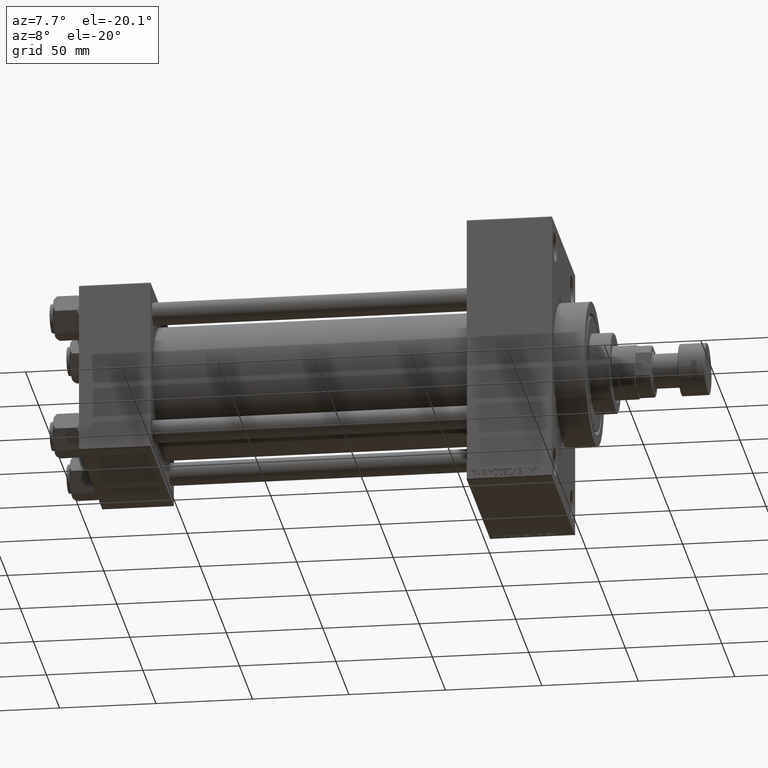
[diagram: clean part render]
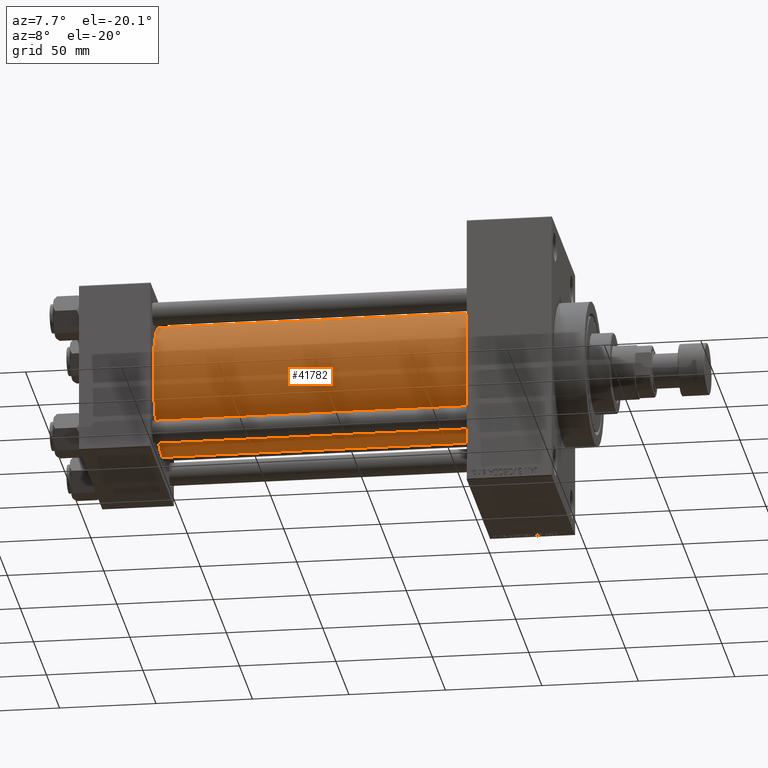
[diagram: same view with one face highlighted and labeled with its STEP entity id]
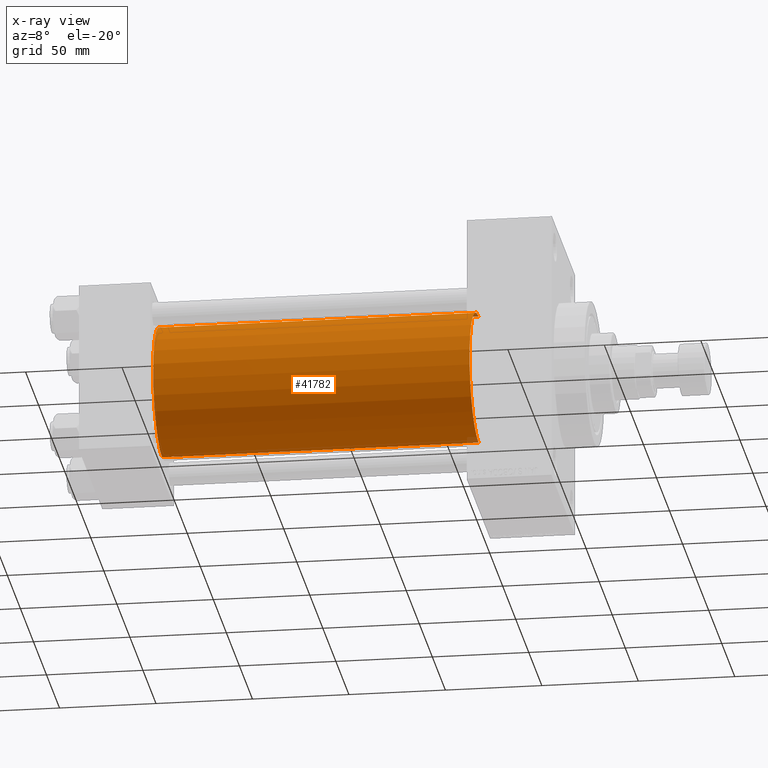
[diagram: x-ray of the same camera — body ghosted, the highlighted face saturated]
A machine part, auxiliary view. The second image highlights one B-rep face of the part: STEP entity #41782.
The next image is the same camera in x-ray: the body ghosted, the highlighted face saturated — about 0% of this face is hidden behind the body in this view.
In plain terms, the highlighted cylindrical surface (partial cylindrical patch) has radius 34.5 mm, axis along (-1, -0, -0).
Its self-contained STEP definition (entity closure, byte-faithful):
#321 = DIRECTION ( 'NONE',  ( 1.000000000000000000, -0.000000000000000000, 0.000000000000000000 ) ) ;
#1037 = VERTEX_POINT ( 'NONE', #12237 ) ;
#2165 = CARTESIAN_POINT ( 'NONE',  ( 201.0000000000000000, -2.602085213965210642E-15, 34.50000000000000000 ) ) ;
#3616 = FACE_OUTER_BOUND ( 'NONE', #34944, .T. ) ;
#4928 = CARTESIAN_POINT ( 'NONE',  ( 37.00000000000000711, -2.602085213965210642E-15, 0.000000000000000000 ) ) ;
#5004 = EDGE_CURVE ( 'NONE', #36677, #1037, #15550, .T. ) ;
#6204 = CARTESIAN_POINT ( 'NONE',  ( 201.0000000000000000, 1.622946243093158675E-15, -34.50000000000000000 ) ) ;
#6930 = ORIENTED_EDGE ( 'NONE', *, *, #19904, .T. ) ;
#9293 = EDGE_CURVE ( 'NONE', #37992, #1037, #33577, .T. ) ;
#12237 = CARTESIAN_POINT ( 'NONE',  ( 37.00000000000000711, 1.622946243093158675E-15, -34.50000000000000000 ) ) ;
#12454 = ORIENTED_EDGE ( 'NONE', *, *, #9293, .T. ) ;
#12536 = CIRCLE ( 'NONE', #17941, 34.50000000000000000 ) ;
#12723 = AXIS2_PLACEMENT_3D ( 'NONE', #4928, #321, #41246 ) ;
#15550 = LINE ( 'NONE', #33199, #42733 ) ;
#15956 = CARTESIAN_POINT ( 'NONE',  ( 201.0000000000000000, -2.602085213965210642E-15, 34.50000000000000000 ) ) ;
#17941 = AXIS2_PLACEMENT_3D ( 'NONE', #42641, #38553, #24245 ) ;
#18141 = AXIS2_PLACEMENT_3D ( 'NONE', #18876, #21770, #29277 ) ;
#18876 = CARTESIAN_POINT ( 'NONE',  ( 201.0000000000000000, -2.602085213965210642E-15, 0.000000000000000000 ) ) ;
#19904 = EDGE_CURVE ( 'NONE', #21131, #37992, #31701, .T. ) ;
#21131 = VERTEX_POINT ( 'NONE', #15956 ) ;
#21770 = DIRECTION ( 'NONE',  ( -1.000000000000000000, -0.000000000000000000, -0.000000000000000000 ) ) ;
#24245 = DIRECTION ( 'NONE',  ( 0.000000000000000000, 0.000000000000000000, -1.000000000000000000 ) ) ;
#26175 = DIRECTION ( 'NONE',  ( -1.000000000000000000, -0.000000000000000000, -0.000000000000000000 ) ) ;
#26292 = ORIENTED_EDGE ( 'NONE', *, *, #5004, .F. ) ;
#29037 = CYLINDRICAL_SURFACE ( 'NONE', #18141, 34.50000000000000000 ) ;
#29277 = DIRECTION ( 'NONE',  ( 0.000000000000000000, 0.000000000000000000, 1.000000000000000000 ) ) ;
#30707 = EDGE_CURVE ( 'NONE', #21131, #36677, #12536, .T. ) ;
#31701 = LINE ( 'NONE', #2165, #38499 ) ;
#33199 = CARTESIAN_POINT ( 'NONE',  ( 201.0000000000000000, 1.622946243093158675E-15, -34.50000000000000000 ) ) ;
#33577 = CIRCLE ( 'NONE', #12723, 34.50000000000000000 ) ;
#34944 = EDGE_LOOP ( 'NONE', ( #26292, #37145, #6930, #12454 ) ) ;
#36677 = VERTEX_POINT ( 'NONE', #6204 ) ;
#37145 = ORIENTED_EDGE ( 'NONE', *, *, #30707, .F. ) ;
#37992 = VERTEX_POINT ( 'NONE', #39563 ) ;
#38499 = VECTOR ( 'NONE', #46453, 1000.000000000000000 ) ;
#38553 = DIRECTION ( 'NONE',  ( 1.000000000000000000, 0.000000000000000000, 0.000000000000000000 ) ) ;
#39563 = CARTESIAN_POINT ( 'NONE',  ( 37.00000000000000711, -2.602085213965210642E-15, 34.50000000000000000 ) ) ;
#41246 = DIRECTION ( 'NONE',  ( 0.000000000000000000, 0.000000000000000000, 1.000000000000000000 ) ) ;
#41782 = ADVANCED_FACE ( 'NONE', ( #3616 ), #29037, .T. ) ;
#42641 = CARTESIAN_POINT ( 'NONE',  ( 201.0000000000000000, -2.602085213965210642E-15, 0.000000000000000000 ) ) ;
#42733 = VECTOR ( 'NONE', #26175, 1000.000000000000000 ) ;
#46453 = DIRECTION ( 'NONE',  ( -1.000000000000000000, -0.000000000000000000, -0.000000000000000000 ) ) ;